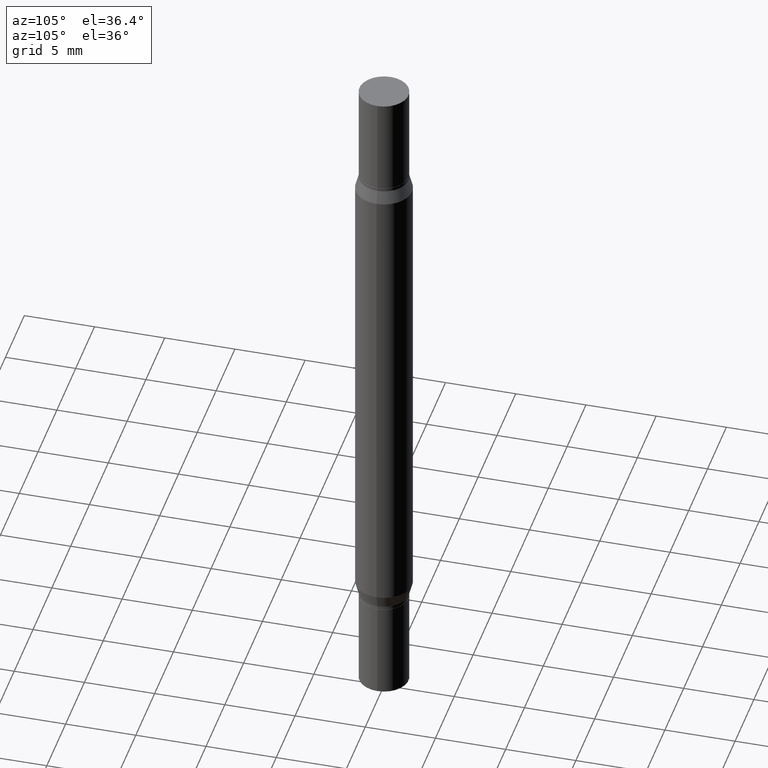
[diagram: clean part render]
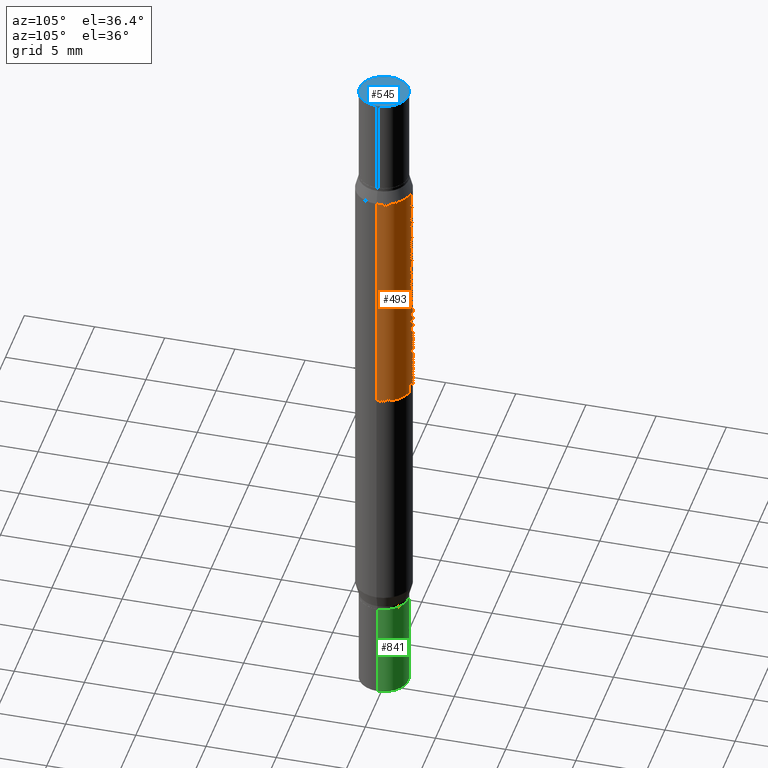
[diagram: same view with three faces highlighted in distinct colors, each labeled with its STEP entity id]
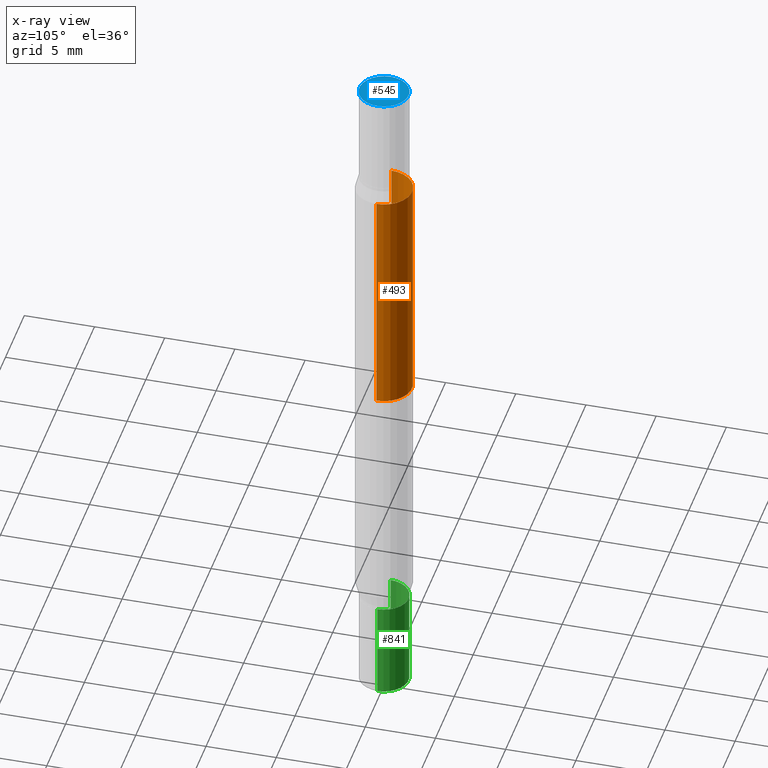
[diagram: x-ray of the same camera — body ghosted, the three highlighted faces saturated]
A machine part, auxiliary view with three faces highlighted in distinct colors.
The next image is the same camera in x-ray (body ghosted, the three faces saturated) — at least one of them is partly hidden behind the body in this view.
Their STEP definitions:

[orange] entity #493 — the highlighted cylindrical surface (edge-blend (fillet) strip) has radius 2.0002 mm, axis along (-0, -0, -1).
#9 = EDGE_CURVE ( 'NONE', #121, #81, #356, .T. ) ;
#56 = LINE ( 'NONE', #492, #436 ) ;
#77 = ORIENTED_EDGE ( 'NONE', *, *, #447, .F. ) ;
#81 = VERTEX_POINT ( 'NONE', #408 ) ;
#93 = DIRECTION ( 'NONE',  ( 2.445468806185136597E-29, 3.491805094961124077E-15, 1.000000000000000000 ) ) ;
#121 = VERTEX_POINT ( 'NONE', #389 ) ;
#167 = VERTEX_POINT ( 'NONE', #252 ) ;
#227 = CARTESIAN_POINT ( 'NONE',  ( 2.406952672487720357E-29, -3.436490507756365459E-15, -0.9842499999999998472 ) ) ;
#245 = AXIS2_PLACEMENT_3D ( 'NONE', #819, #576, #824 ) ;
#252 = CARTESIAN_POINT ( 'NONE',  ( -0.07875000000000000056, -1.740632076205336930E-15, -0.9842499999999998472 ) ) ;
#270 = AXIS2_PLACEMENT_3D ( 'NONE', #227, #911, #662 ) ;
#312 = ORIENTED_EDGE ( 'NONE', *, *, #9, .F. ) ;
#318 = EDGE_CURVE ( 'NONE', #81, #167, #56, .T. ) ;
#352 = DIRECTION ( 'NONE',  ( -2.445468806185136877E-29, -3.491805094961123683E-15, -1.000000000000000000 ) ) ;
#356 = CIRCLE ( 'NONE', #959, 0.07875000000000000056 ) ;
#370 = FACE_OUTER_BOUND ( 'NONE', #947, .T. ) ;
#389 = CARTESIAN_POINT ( 'NONE',  ( 0.07875000000000000056, -1.675210390171119696E-15, -0.3223607004545533949 ) ) ;
#408 = CARTESIAN_POINT ( 'NONE',  ( -0.07875000000000000056, -5.850378619788179676E-16, -0.3223607004545533949 ) ) ;
#430 = CARTESIAN_POINT ( 'NONE',  ( 0.07875000000000000056, -7.423207983339643972E-15, -1.968499999999999694 ) ) ;
#436 = VECTOR ( 'NONE', #352, 39.37007874015748143 ) ;
#442 = DIRECTION ( 'NONE',  ( 1.000000000000000000, -6.982962677686268288E-15, 0.000000000000000000 ) ) ;
#444 = CARTESIAN_POINT ( 'NONE',  ( 4.025582307673839975E-29, -1.125302079303325561E-15, -0.3223607004545533949 ) ) ;
#447 = EDGE_CURVE ( 'NONE', #167, #772, #830, .T. ) ;
#451 = VECTOR ( 'NONE', #740, 39.37007874015748143 ) ;
#477 = EDGE_CURVE ( 'NONE', #121, #772, #581, .T. ) ;
#492 = CARTESIAN_POINT ( 'NONE',  ( -0.07875000000000000056, -6.333035455147343525E-15, -1.968499999999999694 ) ) ;
#493 = ADVANCED_FACE ( 'NONE', ( #370 ), #912, .T. ) ;
#537 = CARTESIAN_POINT ( 'NONE',  ( 0.07875000000000000056, -2.830804604397638560E-15, -0.9842499999999998472 ) ) ;
#576 = DIRECTION ( 'NONE',  ( -2.445468806185136597E-29, -3.491805094961124077E-15, -1.000000000000000000 ) ) ;
#581 = LINE ( 'NONE', #430, #451 ) ;
#662 = DIRECTION ( 'NONE',  ( 0.000000000000000000, 1.000000000000000000, -3.469013325287953293E-15 ) ) ;
#740 = DIRECTION ( 'NONE',  ( -2.445468806185136877E-29, -3.491805094961123683E-15, -1.000000000000000000 ) ) ;
#743 = ORIENTED_EDGE ( 'NONE', *, *, #318, .F. ) ;
#772 = VERTEX_POINT ( 'NONE', #537 ) ;
#819 = CARTESIAN_POINT ( 'NONE',  ( 0.000000000000000000, -6.873299672471851415E-15, -1.968499999999999694 ) ) ;
#824 = DIRECTION ( 'NONE',  ( 1.000000000000000000, -6.982962677686261977E-15, 0.000000000000000000 ) ) ;
#830 = CIRCLE ( 'NONE', #270, 0.07875000000000000056 ) ;
#904 = ORIENTED_EDGE ( 'NONE', *, *, #477, .T. ) ;
#911 = DIRECTION ( 'NONE',  ( -0.000000000000000000, -3.491643216902134830E-15, -1.000000000000000000 ) ) ;
#912 = CYLINDRICAL_SURFACE ( 'NONE', #245, 0.07875000000000000056 ) ;
#947 = EDGE_LOOP ( 'NONE', ( #743, #312, #904, #77 ) ) ;
#959 = AXIS2_PLACEMENT_3D ( 'NONE', #444, #93, #442 ) ;

[blue] entity #545 — the highlighted planar face has unit normal (-0, -0, -1).
#27 = DIRECTION ( 'NONE',  ( 1.000000000000000000, -6.982962677686265922E-15, 0.000000000000000000 ) ) ;
#74 = CIRCLE ( 'NONE', #202, 0.06890000000000007230 ) ;
#100 = DIRECTION ( 'NONE',  ( -2.438088387897959208E-29, -3.491805094961123683E-15, -1.000000000000000000 ) ) ;
#155 = AXIS2_PLACEMENT_3D ( 'NONE', #935, #100, #391 ) ;
#202 = AXIS2_PLACEMENT_3D ( 'NONE', #407, #697, #777 ) ;
#239 = VERTEX_POINT ( 'NONE', #723 ) ;
#328 = AXIS2_PLACEMENT_3D ( 'NONE', #567, #929, #27 ) ;
#351 = EDGE_CURVE ( 'NONE', #239, #647, #674, .T. ) ;
#391 = DIRECTION ( 'NONE',  ( 1.000000000000000000, -6.982962677686265922E-15, 2.260776888683160832E-33 ) ) ;
#407 = CARTESIAN_POINT ( 'NONE',  ( 4.813905344975441835E-29, 3.186569591213228268E-19, 2.731847993664263218E-16 ) ) ;
#409 = EDGE_LOOP ( 'NONE', ( #765, #865 ) ) ;
#545 = ADVANCED_FACE ( 'NONE', ( #620 ), #852, .F. ) ;
#567 = CARTESIAN_POINT ( 'NONE',  ( 4.813905344975441835E-29, 3.186569591213228268E-19, 2.731847993664263218E-16 ) ) ;
#620 = FACE_OUTER_BOUND ( 'NONE', #409, .T. ) ;
#647 = VERTEX_POINT ( 'NONE', #797 ) ;
#654 = EDGE_CURVE ( 'NONE', #647, #239, #74, .T. ) ;
#674 = CIRCLE ( 'NONE', #328, 0.06890000000000007230 ) ;
#697 = DIRECTION ( 'NONE',  ( 2.445468806185136597E-29, 3.491805094961124077E-15, 1.000000000000000000 ) ) ;
#723 = CARTESIAN_POINT ( 'NONE',  ( 0.06890000000000007230, -4.808074715334629460E-16, 2.731847993664263218E-16 ) ) ;
#765 = ORIENTED_EDGE ( 'NONE', *, *, #351, .T. ) ;
#777 = DIRECTION ( 'NONE',  ( 1.000000000000000000, -6.982962677686265922E-15, 0.000000000000000000 ) ) ;
#797 = CARTESIAN_POINT ( 'NONE',  ( -0.06890000000000007230, -8.163773080062677072E-18, 2.731847993664279982E-16 ) ) ;
#852 = PLANE ( 'NONE',  #155 ) ;
#865 = ORIENTED_EDGE ( 'NONE', *, *, #654, .T. ) ;
#929 = DIRECTION ( 'NONE',  ( 2.445468806185136597E-29, 3.491805094961124077E-15, 1.000000000000000000 ) ) ;
#935 = CARTESIAN_POINT ( 'NONE',  ( 4.855195012145418629E-29, 5.944781040843930047E-17, 2.731847993664263218E-16 ) ) ;

[green] entity #841 — the highlighted cylindrical surface (edge-blend (fillet) strip) has radius 1.7501 mm, axis along (-0, 0, 1).
#60 = CARTESIAN_POINT ( 'NONE',  ( 0.06890000000000007230, -7.354107144005315446E-15, -1.968500000000000139 ) ) ;
#70 = ORIENTED_EDGE ( 'NONE', *, *, #739, .F. ) ;
#88 = VECTOR ( 'NONE', #219, 39.37007874015748143 ) ;
#105 = CIRCLE ( 'NONE', #398, 0.06890000000000007230 ) ;
#122 = CYLINDRICAL_SURFACE ( 'NONE', #734, 0.06890000000000007230 ) ;
#131 = ORIENTED_EDGE ( 'NONE', *, *, #230, .F. ) ;
#165 = AXIS2_PLACEMENT_3D ( 'NONE', #681, #617, #455 ) ;
#200 = CARTESIAN_POINT ( 'NONE',  ( 0.06890000000000007230, -6.391854887020144024E-15, -1.692899999999999849 ) ) ;
#219 = DIRECTION ( 'NONE',  ( -2.445468806185136877E-29, 3.491481338843145188E-15, 1.000000000000000000 ) ) ;
#230 = EDGE_CURVE ( 'NONE', #952, #834, #105, .T. ) ;
#256 = DIRECTION ( 'NONE',  ( -2.445468806185136877E-29, 3.491481338843145188E-15, 1.000000000000000000 ) ) ;
#277 = DIRECTION ( 'NONE',  ( -2.445468806185136597E-29, 3.491481338843145583E-15, 1.000000000000000000 ) ) ;
#294 = EDGE_LOOP ( 'NONE', ( #804, #726, #131, #70 ) ) ;
#334 = CARTESIAN_POINT ( 'NONE',  ( -0.06890000000000007230, 4.895639449387095418E-16, -3.389146277185633520E-30 ) ) ;
#335 = EDGE_CURVE ( 'NONE', #560, #834, #782, .T. ) ;
#344 = CARTESIAN_POINT ( 'NONE',  ( -0.06890000000000007230, -5.902290942081436849E-15, -1.692899999999999849 ) ) ;
#396 = CARTESIAN_POINT ( 'NONE',  ( 0.000000000000000000, 0.000000000000000000, 0.000000000000000000 ) ) ;
#398 = AXIS2_PLACEMENT_3D ( 'NONE', #807, #277, #889 ) ;
#455 = DIRECTION ( 'NONE',  ( 1.000000000000000000, -6.982962677686258822E-15, 0.000000000000000000 ) ) ;
#500 = CIRCLE ( 'NONE', #165, 0.06890000000000007230 ) ;
#560 = VERTEX_POINT ( 'NONE', #702 ) ;
#599 = EDGE_CURVE ( 'NONE', #965, #560, #500, .T. ) ;
#617 = DIRECTION ( 'NONE',  ( -2.445468806185136597E-29, 3.491481338843145583E-15, 1.000000000000000000 ) ) ;
#681 = CARTESIAN_POINT ( 'NONE',  ( 4.813905344975441835E-29, -6.872981015512731707E-15, -1.968500000000000139 ) ) ;
#702 = CARTESIAN_POINT ( 'NONE',  ( -0.06890000000000007230, -5.902290942081436849E-15, -1.968500000000000139 ) ) ;
#726 = ORIENTED_EDGE ( 'NONE', *, *, #335, .T. ) ;
#734 = AXIS2_PLACEMENT_3D ( 'NONE', #396, #955, #960 ) ;
#739 = EDGE_CURVE ( 'NONE', #965, #952, #907, .T. ) ;
#782 = LINE ( 'NONE', #334, #905 ) ;
#804 = ORIENTED_EDGE ( 'NONE', *, *, #599, .T. ) ;
#806 = FACE_OUTER_BOUND ( 'NONE', #294, .T. ) ;
#807 = CARTESIAN_POINT ( 'NONE',  ( 4.139934141990817236E-29, -5.910728758527560286E-15, -1.692899999999999849 ) ) ;
#834 = VERTEX_POINT ( 'NONE', #344 ) ;
#841 = ADVANCED_FACE ( 'NONE', ( #806 ), #122, .T. ) ;
#889 = DIRECTION ( 'NONE',  ( 1.000000000000000000, -6.982962677686258822E-15, 0.000000000000000000 ) ) ;
#905 = VECTOR ( 'NONE', #256, 39.37007874015748143 ) ;
#907 = LINE ( 'NONE', #914, #88 ) ;
#914 = CARTESIAN_POINT ( 'NONE',  ( 0.06890000000000007230, -4.811261284925842315E-16, 3.359685798523402771E-30 ) ) ;
#952 = VERTEX_POINT ( 'NONE', #200 ) ;
#955 = DIRECTION ( 'NONE',  ( -2.445468806185136597E-29, 3.491481338843145583E-15, 1.000000000000000000 ) ) ;
#960 = DIRECTION ( 'NONE',  ( 1.000000000000000000, -6.982962677686265922E-15, 4.876176775795935232E-29 ) ) ;
#965 = VERTEX_POINT ( 'NONE', #60 ) ;